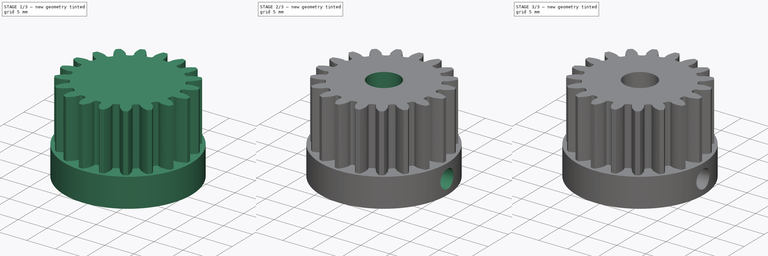
[diagram: build sequence overview — one tinted view per stage of 3, left to right]
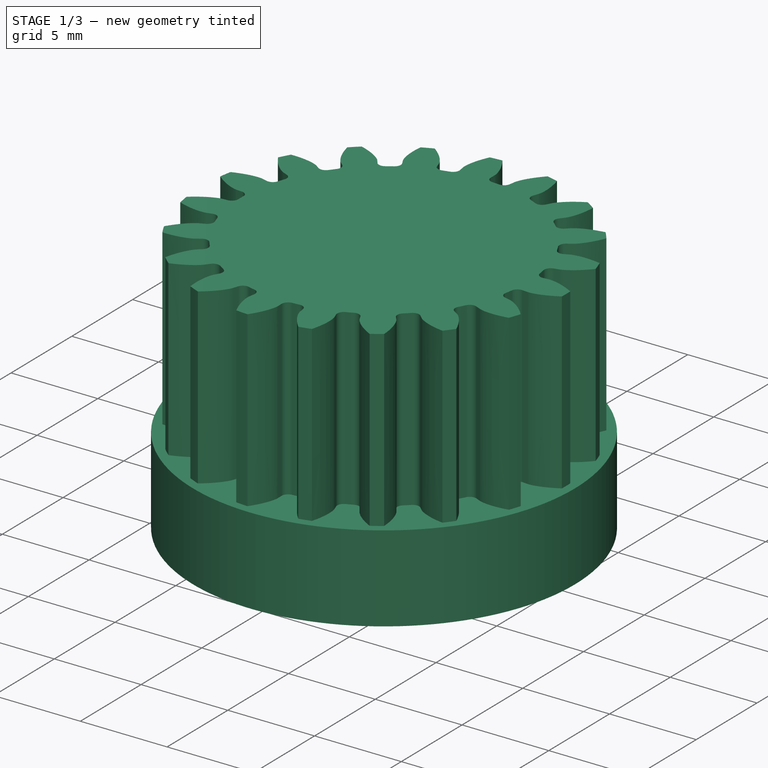
[diagram: stage 1 of 3 — iso view after this stage's code; geometry added in this stage tinted green]
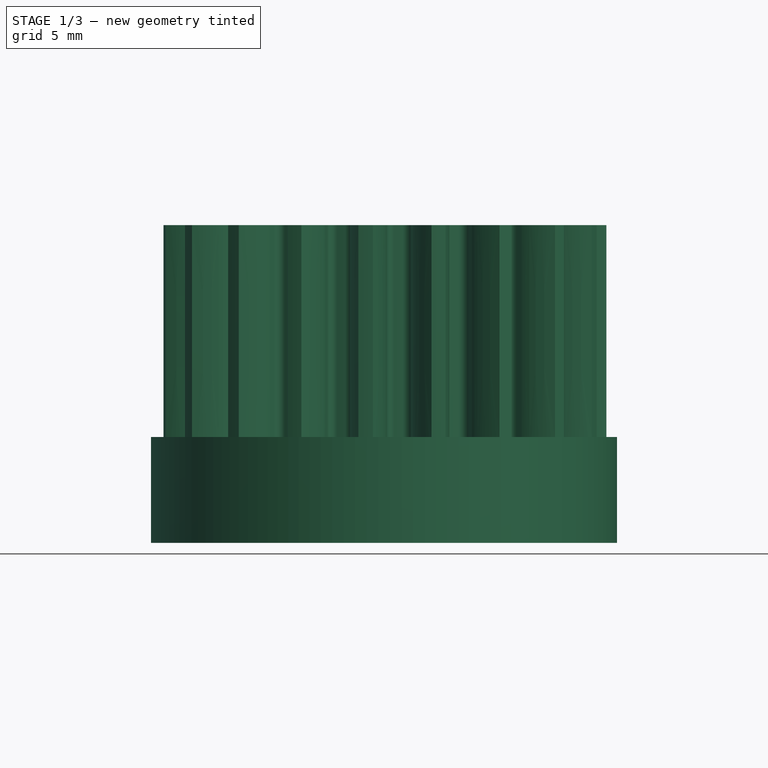
[diagram: stage 1 of 3 — front view after this stage's code; geometry added in this stage tinted green]
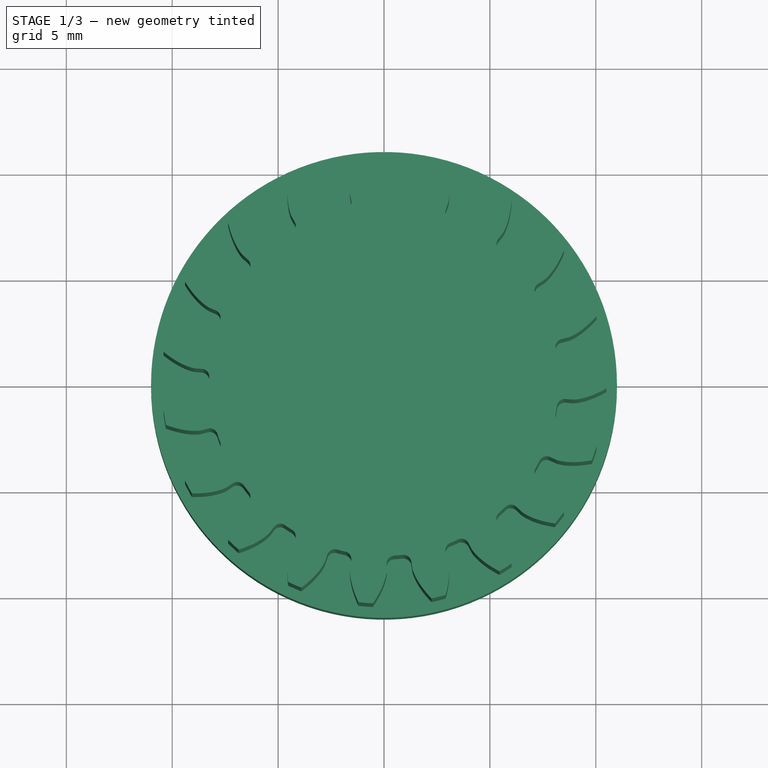
[diagram: stage 1 of 3 — top view after this stage's code; geometry added in this stage tinted green]
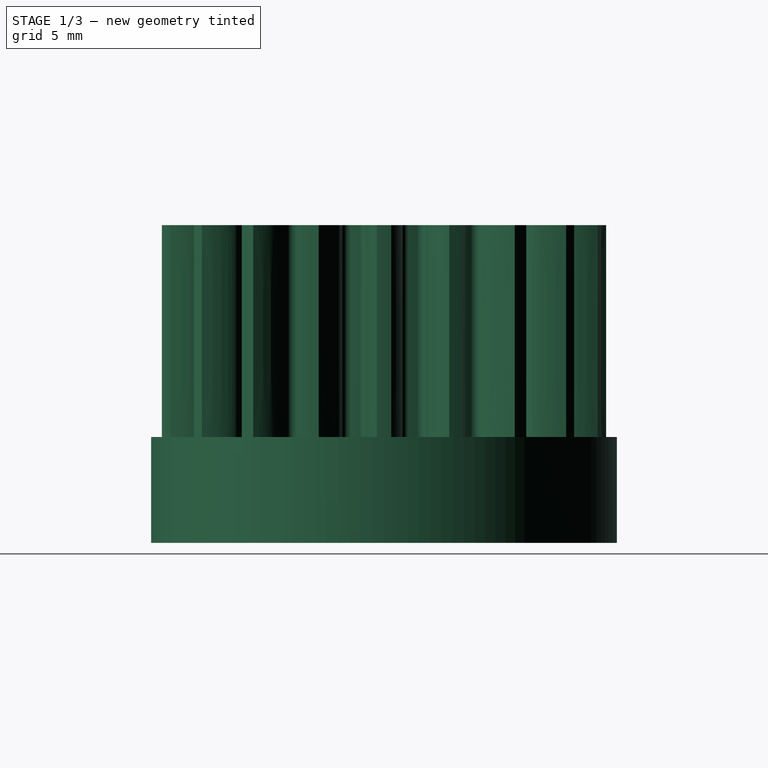
[diagram: stage 1 of 3 — right view after this stage's code; geometry added in this stage tinted green]
FCSTD DOCUMENT  (FreeCAD 0.18R14014 (Git))
Label: SmallGear_D5.4mm
License: All rights reserved
LicenseURL: http://en.wikipedia.org/wiki/All_rights_reserved
objects: Sketcher::SketchObject×5, PartDesign::Pocket×4, PartDesign::Pad×2, PartDesign::Plane×2, Part::Part2DObjectPython×1, PartDesign::Body×1
note: 21 computed .brp shape members not serialized (recipe doc carries the construction recipe); baked Part::Feature solids carry a one-line shape summary decoded from their .brp

FEATURE [Part::Part2DObjectPython] InvoluteGear  label="TheGear"  # Draft 2D object (typed FeaturePython)
  ExternalGear = true
  HighPrecision = true
  Modules = 1
  NumberOfTeeth = 19
  PressureAngle = 20
FEATURE [PartDesign::Pad] Pad  label="GearPad"
  Length = 10
  Length2 = 100
  Profile = -> InvoluteGear
  Type = 0
FEATURE [Sketcher::SketchObject] Sketch  label="GearHubSketch"
  MapMode = 5
  Support = -> [XY_Plane]
  sketch-geometry (1):
    g0: Circle CenterX=0 CenterY=0 CenterZ=0 NormalX=0 NormalY=0 NormalZ=1 AngleXU=0 Radius=11
  constraints (2):
    c: Coincident(g0,g-1)
    c: Radius(g0) = 11
FEATURE [PartDesign::Pad] Pad001  label="GearHubPad"
  BaseFeature = -> Pad
  Length = 5
  Length2 = 100
  Profile = -> Sketch
  Reversed = true
  Type = 0
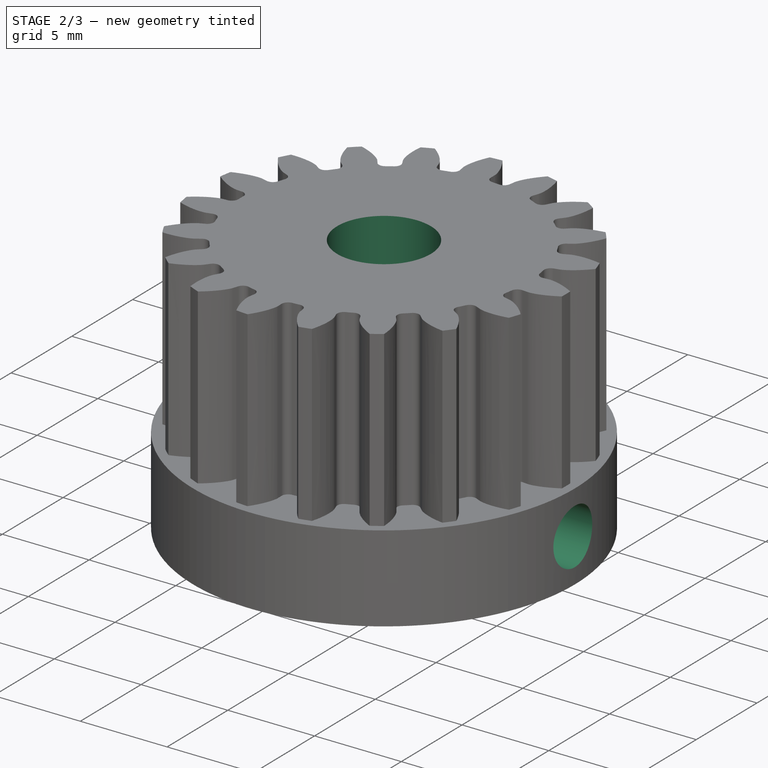
[diagram: stage 2 of 3 — iso view after this stage's code; geometry added in this stage tinted green]
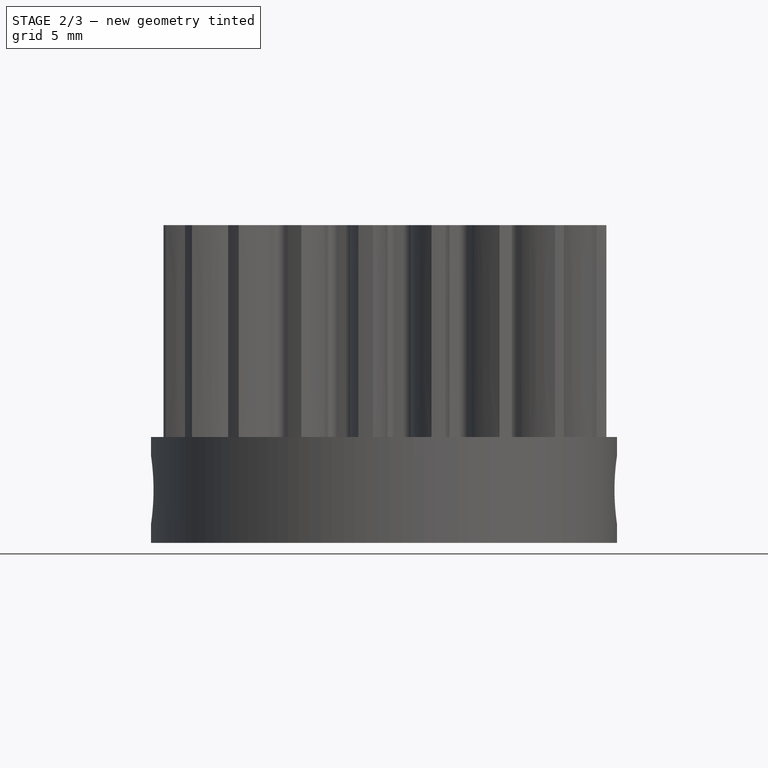
[diagram: stage 2 of 3 — front view after this stage's code; geometry added in this stage tinted green]
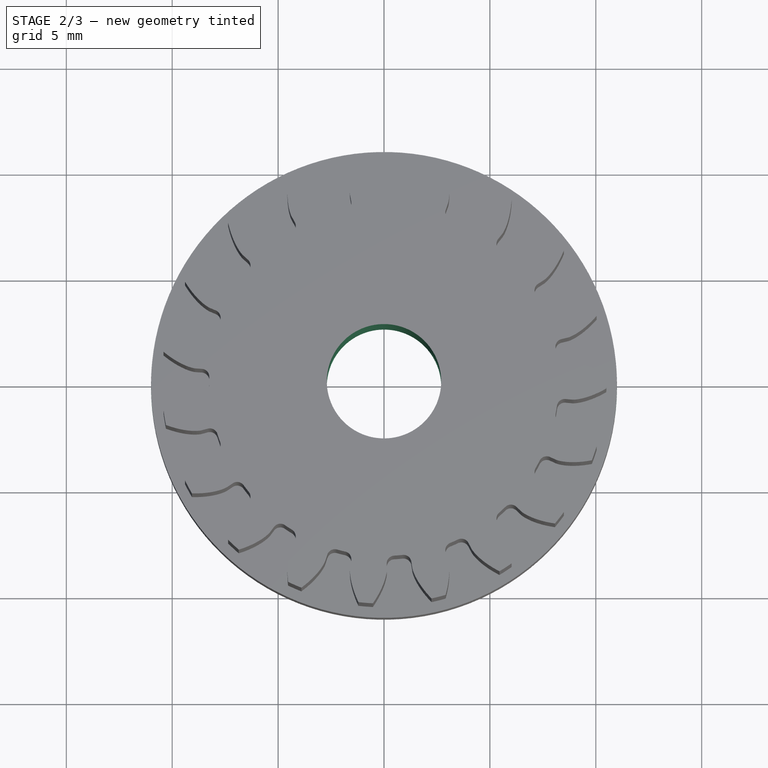
[diagram: stage 2 of 3 — top view after this stage's code; geometry added in this stage tinted green]
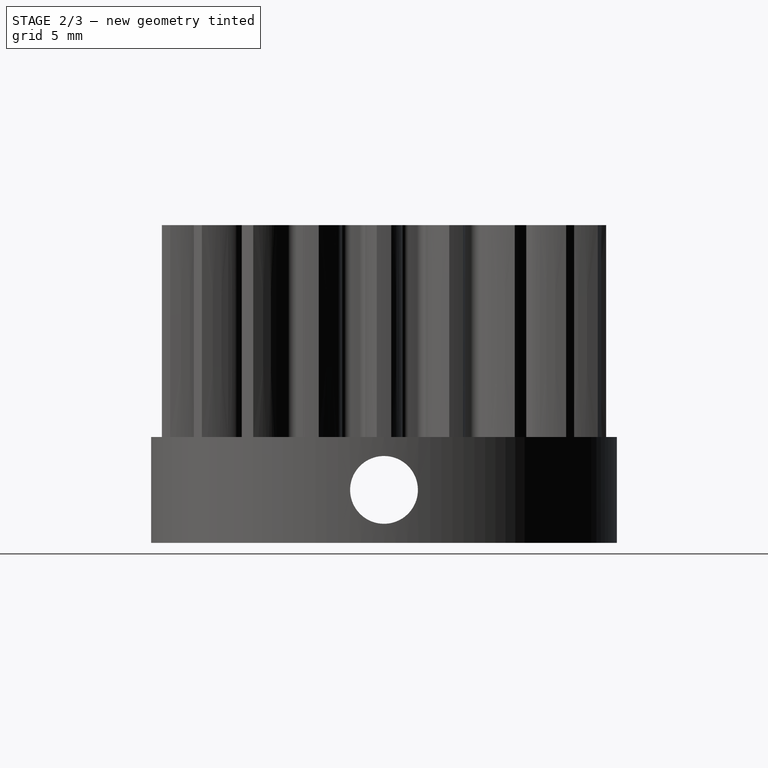
[diagram: stage 2 of 3 — right view after this stage's code; geometry added in this stage tinted green]
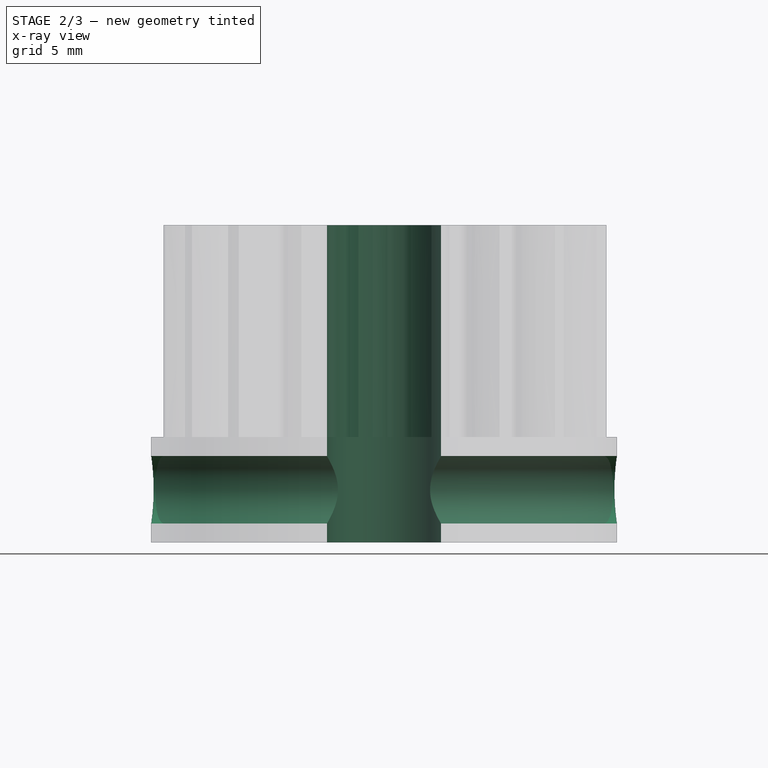
[diagram: stage 2 of 3 — x-ray composite at the front view; earlier geometry ghosted, this stage's added geometry solid]
FEATURE [Sketcher::SketchObject] Sketch001  label="HoleSketch"
  MapMode = 5
  Support = -> [XY_Plane]
  sketch-geometry (1):
    g0: Circle CenterX=0 CenterY=0 CenterZ=0 NormalX=0 NormalY=0 NormalZ=1 AngleXU=0 Radius=2.7
  constraints (2):
    c: Coincident(g0,g-1)
    c: Radius(g0) = 2.7
FEATURE [PartDesign::Pocket] Pocket  label="HolePocket"
  BaseFeature = -> Pad001
  Length = 5
  Length2 = 100
  Midplane = true
  Profile = -> Sketch001
  Type = 1
FEATURE [Sketcher::SketchObject] Sketch002  label="ScrewHolesSketch"
  MapMode = 5
  Placement = pos=(0,0,0) rot=(0.57735,0.57735,0.57735;2.0944rad)
  Support = -> [YZ_Plane]
  sketch-geometry (1):
    g0: Circle CenterX=0 CenterY=-2.5 CenterZ=0 NormalX=0 NormalY=0 NormalZ=1 AngleXU=0 Radius=1.6
  constraints (3):
    c: PointOnObject(g0,g-2)
    c: Distance(g-1,g0) = 2.5
    c: Radius(g0) = 1.6
FEATURE [PartDesign::Pocket] Pocket001  label="ScrewHolesPocket"
  BaseFeature = -> Pocket
  Length = 5
  Length2 = 100
  Midplane = true
  Profile = -> Sketch002
  Type = 1
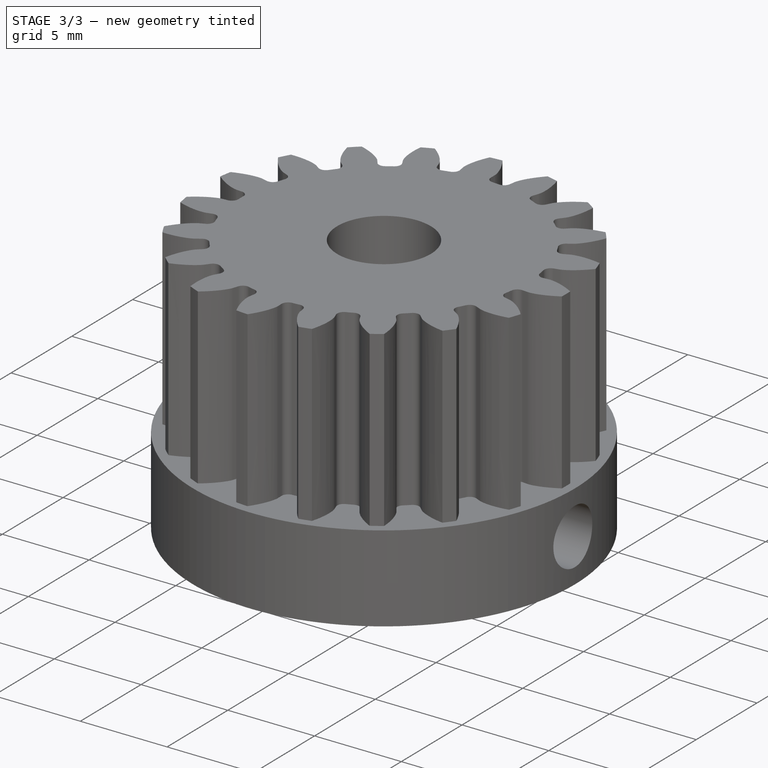
[diagram: stage 3 of 3 — iso view after this stage's code; geometry added in this stage tinted green]
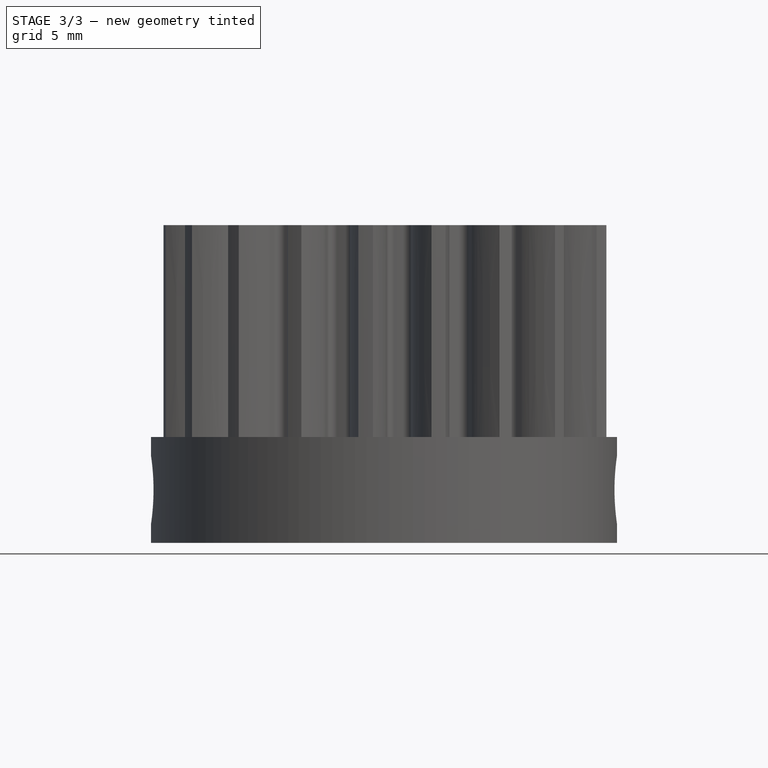
[diagram: stage 3 of 3 — front view after this stage's code; geometry added in this stage tinted green]
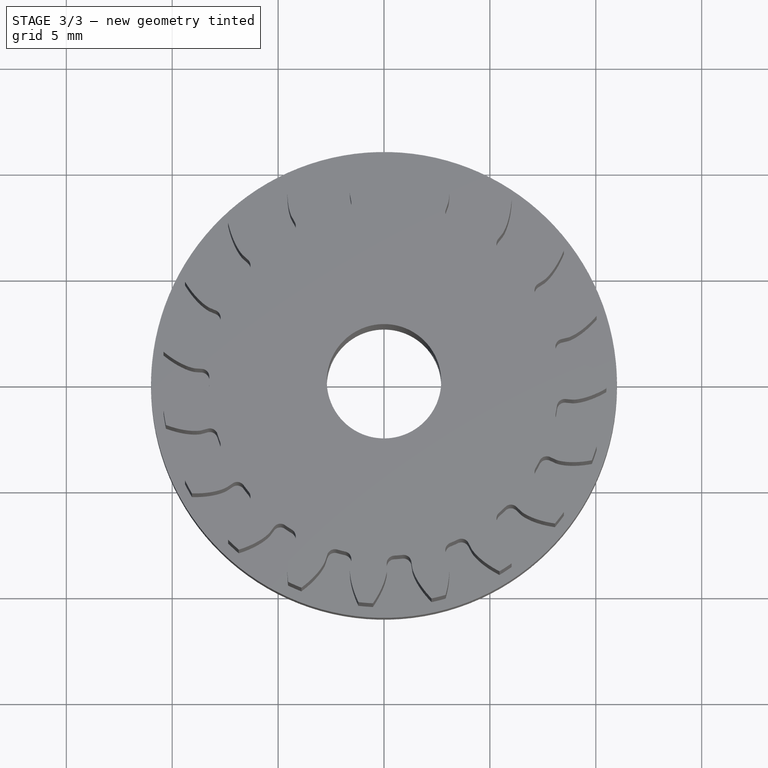
[diagram: stage 3 of 3 — top view after this stage's code; geometry added in this stage tinted green]
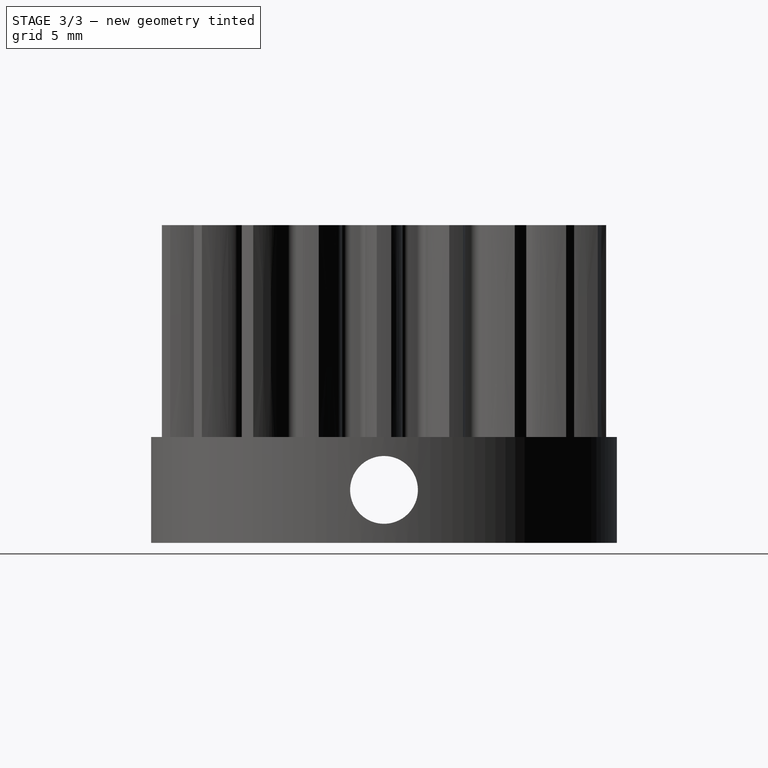
[diagram: stage 3 of 3 — right view after this stage's code; geometry added in this stage tinted green]
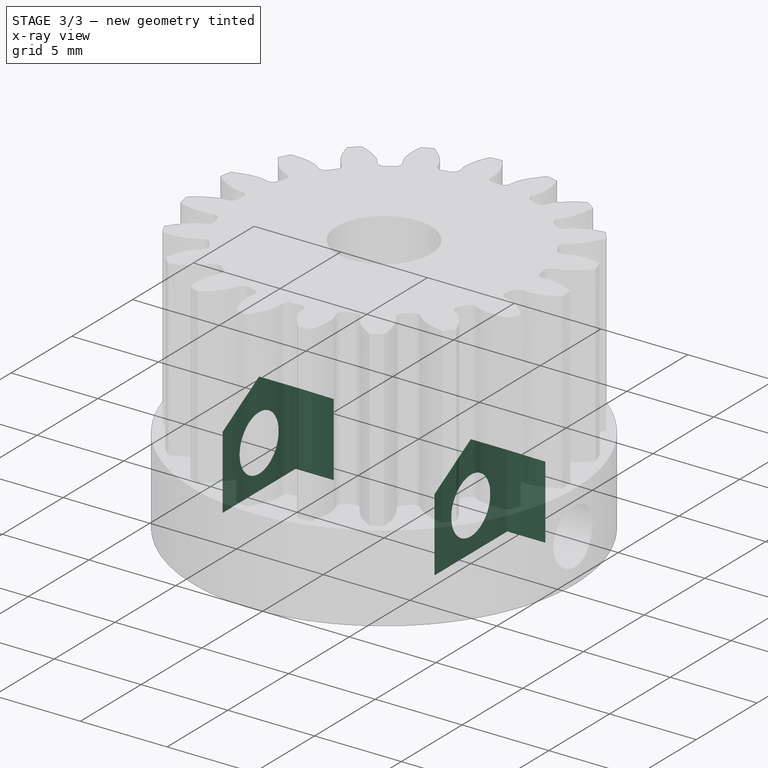
[diagram: stage 3 of 3 — x-ray composite at the iso view; earlier geometry ghosted, this stage's added geometry solid]
FEATURE [PartDesign::Plane] DatumPlane  label="Nut1Plane"
  AttachmentOffset = pos=(0,0,5) rot=(0,0,1;0rad)
  MapMode = 5
  Placement = pos=(5,-1e-12,1e-12) rot=(0.57735,0.57735,0.57735;2.0944rad)
  Support = -> [YZ_Plane]
FEATURE [PartDesign::Plane] DatumPlane001  label="Nut2Plane"
  AttachmentOffset = pos=(0,0,-5) rot=(0,0,1;0rad)
  MapMode = 5
  Placement = pos=(-5,1e-12,-1e-12) rot=(0.57735,0.57735,0.57735;2.0944rad)
  Support = -> [YZ_Plane]
FEATURE [Sketcher::SketchObject] Sketch003  label="Nut1Sketch"
  ExternalGeometry = -> [Sketch002]
  MapMode = 5
  Placement = pos=(5,-1e-12,1e-12) rot=(0.57735,0.57735,0.57735;2.0944rad)
  Support = -> [DatumPlane]
  sketch-geometry (10):
    g0: LineSegment StartX=3 StartY=-4.23205 StartZ=0 EndX=3 EndY=-0.767949 EndZ=0
    g1: LineSegment StartX=3 StartY=-0.767949 StartZ=0 EndX=0 EndY=0.964102 EndZ=0
    g2: LineSegment StartX=0 StartY=0.964102 StartZ=0 EndX=-3 EndY=-0.767949 EndZ=0
    g3: LineSegment StartX=-3 StartY=-0.767949 StartZ=0 EndX=-3 EndY=-4.23205 EndZ=0
    g4: LineSegment [constr] StartX=-3 StartY=-4.23205 StartZ=0 EndX=0 EndY=-5.9641 EndZ=0
    g5: LineSegment [constr] StartX=0 StartY=-5.9641 StartZ=0 EndX=3 EndY=-4.23205 EndZ=0
    g6: Circle [constr] CenterX=0 CenterY=-2.5 CenterZ=0 NormalX=0 NormalY=0 NormalZ=1 AngleXU=0 Radius=3.4641
    g7: LineSegment StartX=-3 StartY=-4.23205 StartZ=0 EndX=-3 EndY=-14.2321 EndZ=0
    g8: LineSegment StartX=-3 StartY=-14.2321 StartZ=0 EndX=3 EndY=-14.2321 EndZ=0
    g9: LineSegment StartX=3 StartY=-14.2321 StartZ=0 EndX=3 EndY=-4.23205 EndZ=0
  constraints (24):
    c: Coincident(g0,g1)
    c: Coincident(g1,g2)
    c: Coincident(g2,g3)
    c: Coincident(g3,g4)
    c: Coincident(g4,g5)
    c: Coincident(g5,g0)
    c: Equal(g0, g1-g5) x5
    c: PointOnObject(g0,g6)
    c: PointOnObject(g1,g6)
    c: PointOnObject(g2,g6)
    c: PointOnObject(g3,g6)
    c: PointOnObject(g4,g6)
    c: PointOnObject(g5,g6)
    c: Coincident(g6,g-3)
    c: Distance(g2,g0) = 6
    c: Vertical(g0)
    c: Coincident(g7,g3)
    c: Vertical(g7)
    c: Coincident(g8,g7)
    c: Coincident(g9,g0)
    c: Vertical(g9)
    c: Coincident(g9,g8)
    c: Distance(g9) = 10
    c: Horizontal(g8)
FEATURE [PartDesign::Pocket] Pocket002  label="Nut1Pocket"
  BaseFeature = -> Pocket001
  Length = 2.2
  Length2 = 100
  Profile = -> Sketch003
  Reversed = true
  Type = 0
FEATURE [Sketcher::SketchObject] Sketch004  label="Nut2Sketch"
  ExternalGeometry = -> [Sketch002]
  MapMode = 5
  Placement = pos=(-5,1e-12,-1e-12) rot=(0.57735,0.57735,0.57735;2.0944rad)
  Support = -> [DatumPlane001]
  sketch-geometry (10):
    g0: LineSegment StartX=3 StartY=-4.23205 StartZ=0 EndX=3 EndY=-0.767949 EndZ=0
    g1: LineSegment StartX=3 StartY=-0.767949 StartZ=0 EndX=0 EndY=0.964102 EndZ=0
    g2: LineSegment StartX=0 StartY=0.964102 StartZ=0 EndX=-3 EndY=-0.767949 EndZ=0
    g3: LineSegment StartX=-3 StartY=-0.767949 StartZ=0 EndX=-3 EndY=-4.23205 EndZ=0
    g4: LineSegment [constr] StartX=-3 StartY=-4.23205 StartZ=0 EndX=0 EndY=-5.9641 EndZ=0
    g5: LineSegment [constr] StartX=0 StartY=-5.9641 StartZ=0 EndX=3 EndY=-4.23205 EndZ=0
    g6: Circle [constr] CenterX=0 CenterY=-2.5 CenterZ=0 NormalX=0 NormalY=0 NormalZ=1 AngleXU=0 Radius=3.4641
    g7: LineSegment StartX=-3 StartY=-4.23205 StartZ=0 EndX=-3 EndY=-14.2321 EndZ=0
    g8: LineSegment StartX=-3 StartY=-14.2321 StartZ=0 EndX=3 EndY=-14.2321 EndZ=0
    g9: LineSegment StartX=3 StartY=-14.2321 StartZ=0 EndX=3 EndY=-4.23205 EndZ=0
  constraints (24):
    c: Coincident(g0,g1)
    c: Coincident(g1,g2)
    c: Coincident(g2,g3)
    c: Coincident(g3,g4)
    c: Coincident(g4,g5)
    c: Coincident(g5,g0)
    c: Equal(g0, g1-g5) x5
    c: PointOnObject(g0,g6)
    c: PointOnObject(g1,g6)
    c: PointOnObject(g2,g6)
    c: PointOnObject(g3,g6)
    c: PointOnObject(g4,g6)
    c: PointOnObject(g5,g6)
    c: Coincident(g6,g-3)
    c: Distance(g2,g0) = 6
    c: Vertical(g0)
    c: Coincident(g7,g3)
    c: Vertical(g7)
    c: Coincident(g8,g7)
    c: Coincident(g9,g0)
    c: Vertical(g9)
    c: Coincident(g9,g8)
    c: Distance(g9) = 10
    c: Horizontal(g8)
FEATURE [PartDesign::Pocket] Pocket003  label="Nut2Pocket"
  BaseFeature = -> Pocket002
  Length = 2.2
  Length2 = 100
  Profile = -> Sketch004
  Type = 0
FEATURE [PartDesign::Body] Body  label="GearBody"
  Group = -> [InvoluteGear,Pad,Sketch,Pad001,Sketch001,Pocket,Sketch002,Pocket001,DatumPlane,DatumPlane001,Sketch003,Pocket002,Sketch004,Pocket003]
  Origin = -> Origin
  Tip = -> Pocket003
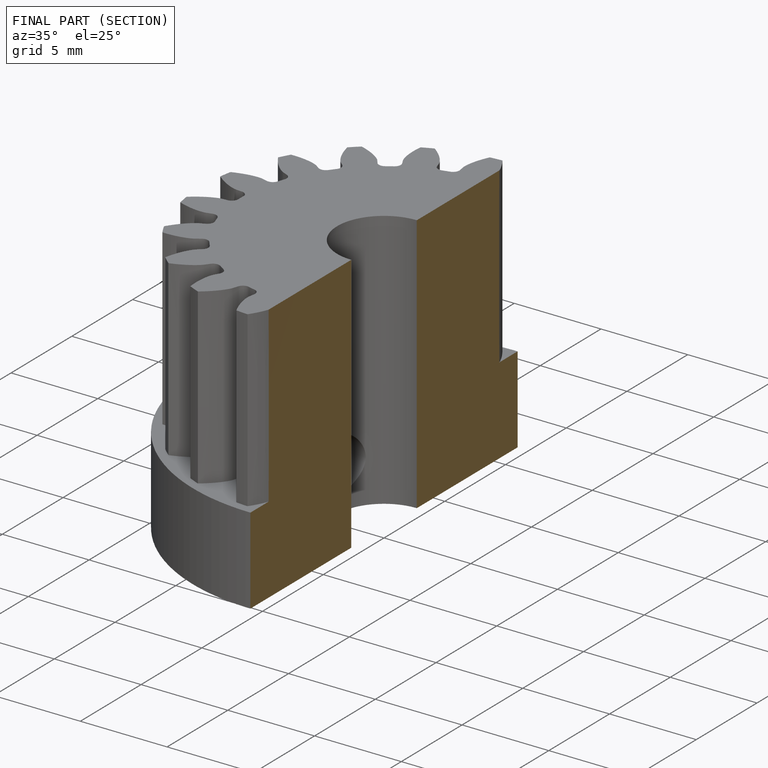
[diagram: finished part — half-section view (interior)]
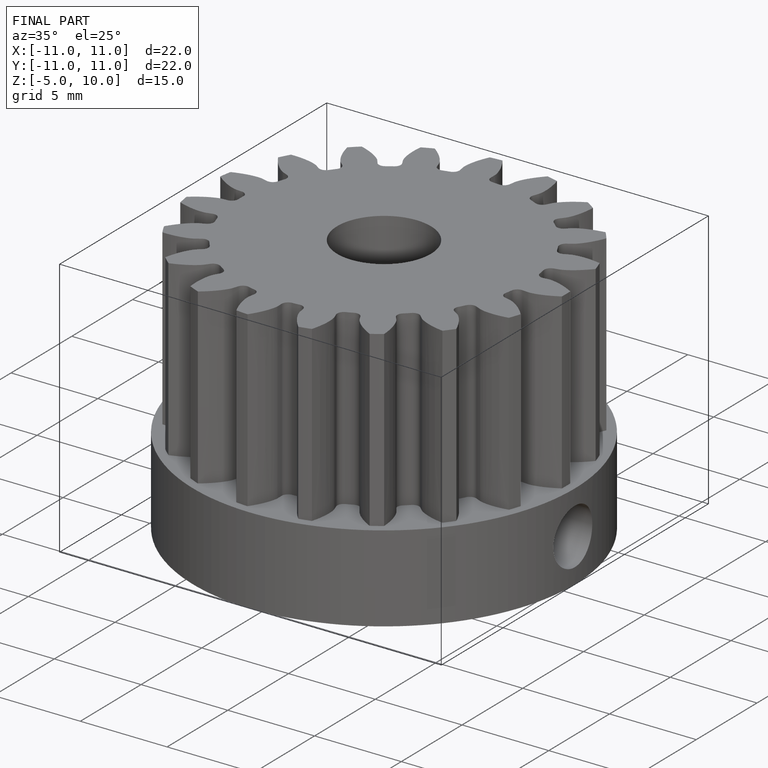
[diagram: finished part — iso view with bounding-box wireframe]
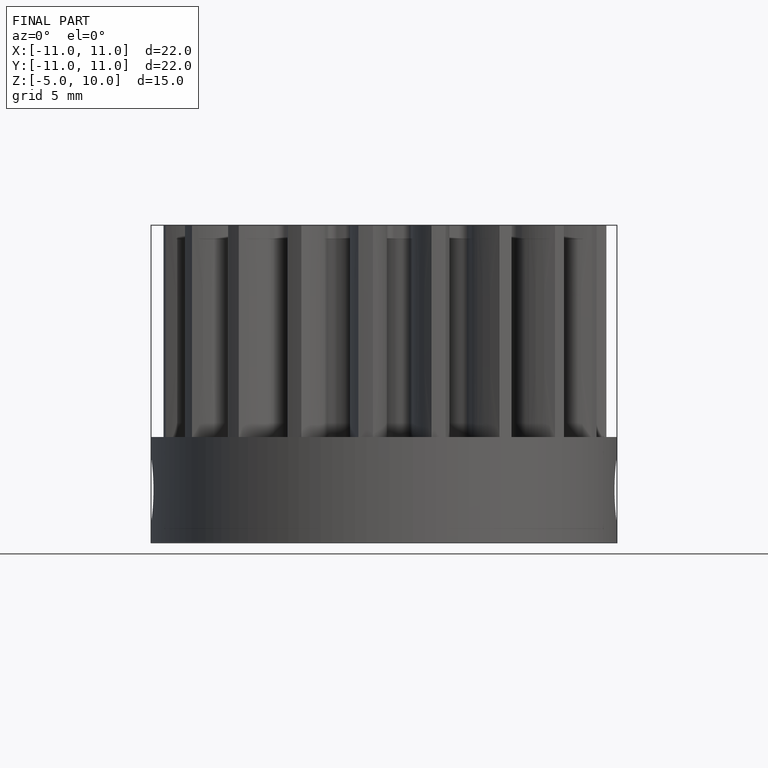
[diagram: finished part — front view with bounding-box wireframe]
